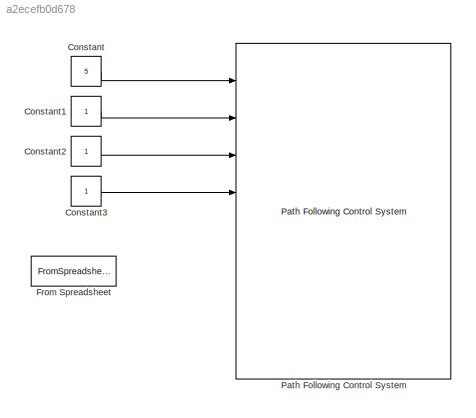
MODEL slx_a2ecefb0d678
KIND model
CONFIG AbsTol = auto
CONFIG EnableMultiTasking = off
CONFIG FixedStep = auto
CONFIG MaxStep = auto
CONFIG MinStep = auto
CONFIG RelTol = 1e-3
CONFIG SampleTimeConstraint = Unconstrained
CONFIG SolverName = VariableStepAuto
CONFIG StartTime = 0.0
CONFIG StopTime = 10.0
BLOCK [Constant] Constant
  Value = 5
BLOCK [Constant] Constant1
BLOCK [Constant] Constant2
BLOCK [Constant] Constant3
BLOCK [FromSpreadsheet] From Spreadsheet
  Ports = [0, 1]
BLOCK [Reference] Path Following Control System  REF=mpcadaslib/Path Following Control System
  Ports = [8, 2]
  SourceBlock = mpcadaslib/Path Following Control System
  SourceProductBaseCode = MP
  SourceType = Path following control (PFC) system
LINE Constant1:1 -> Path Following Control System:2
LINE Constant2:1 -> Path Following Control System:3
LINE Constant3:1 -> Path Following Control System:4
LINE Constant:1 -> Path Following Control System:1
